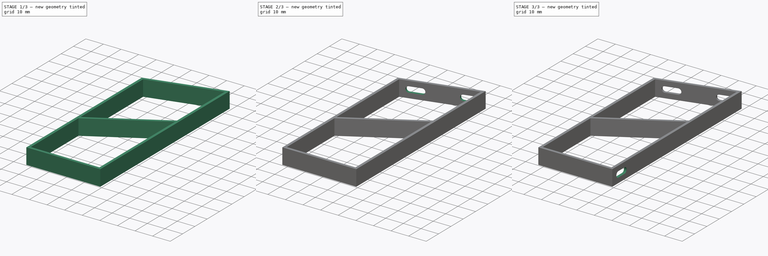
[diagram: build sequence overview — one tinted view per stage of 3, left to right]
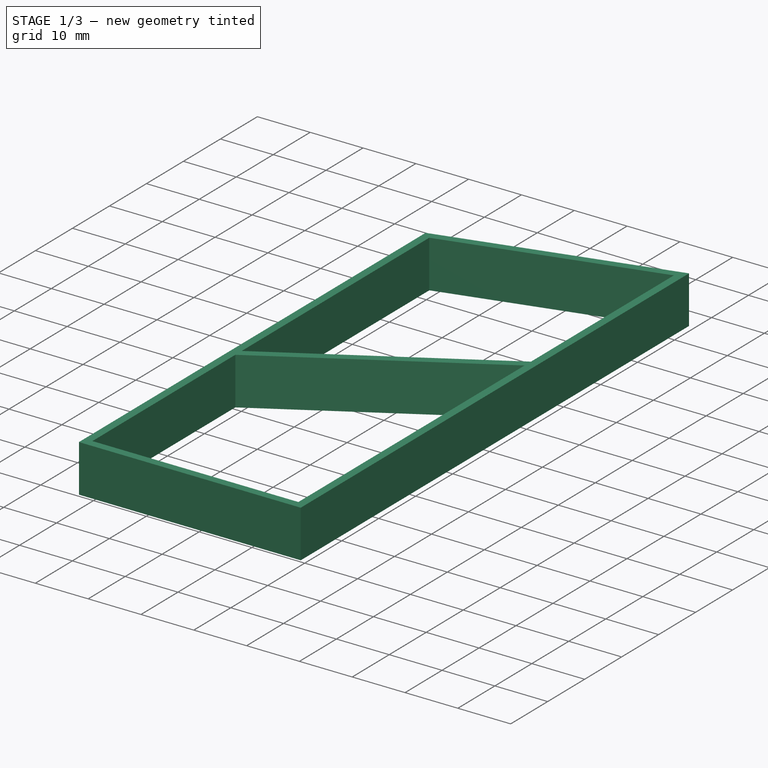
[diagram: stage 1 of 3 — iso view after this stage's code; geometry added in this stage tinted green]
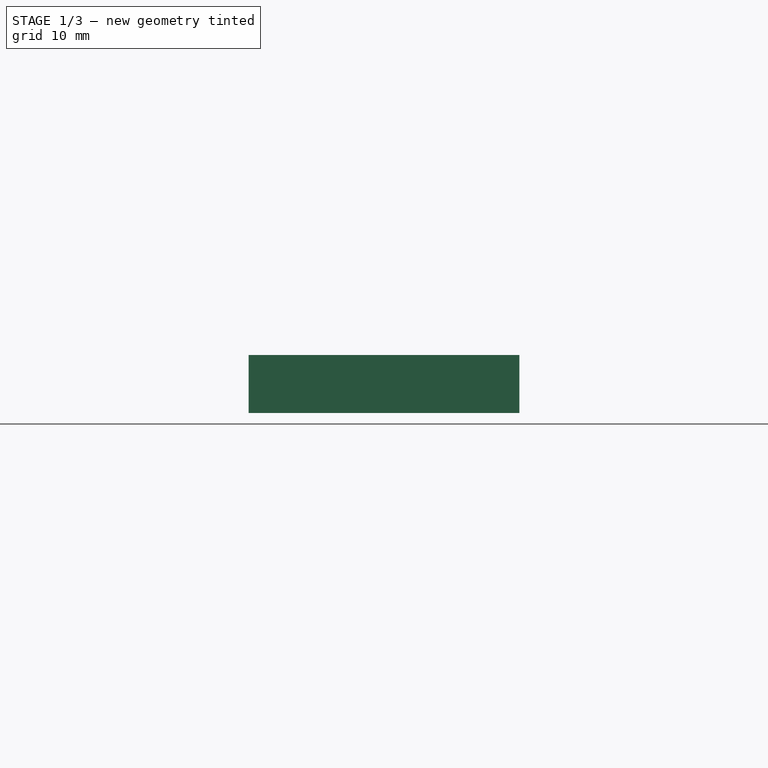
[diagram: stage 1 of 3 — front view after this stage's code; geometry added in this stage tinted green]
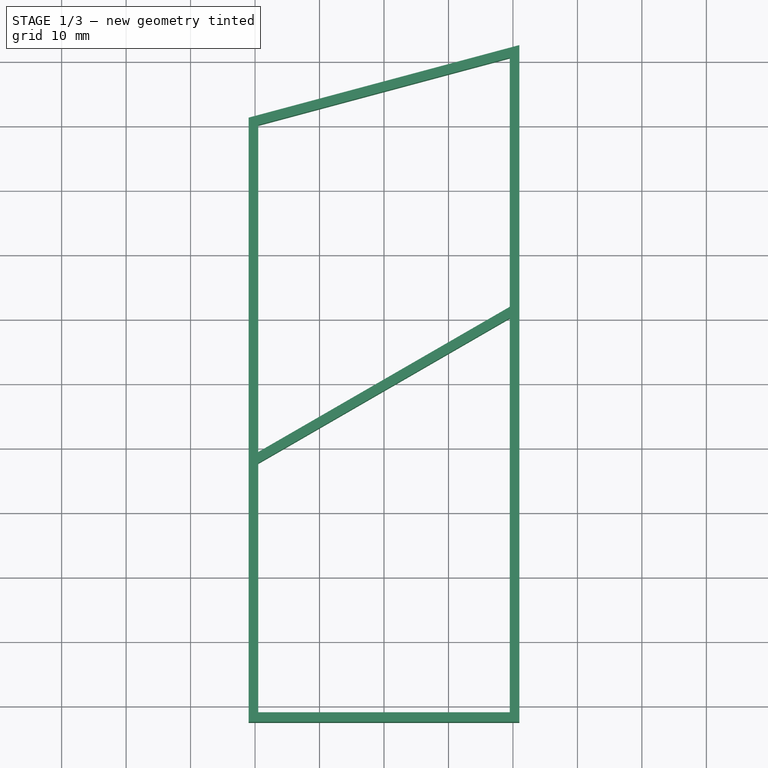
[diagram: stage 1 of 3 — top view after this stage's code; geometry added in this stage tinted green]
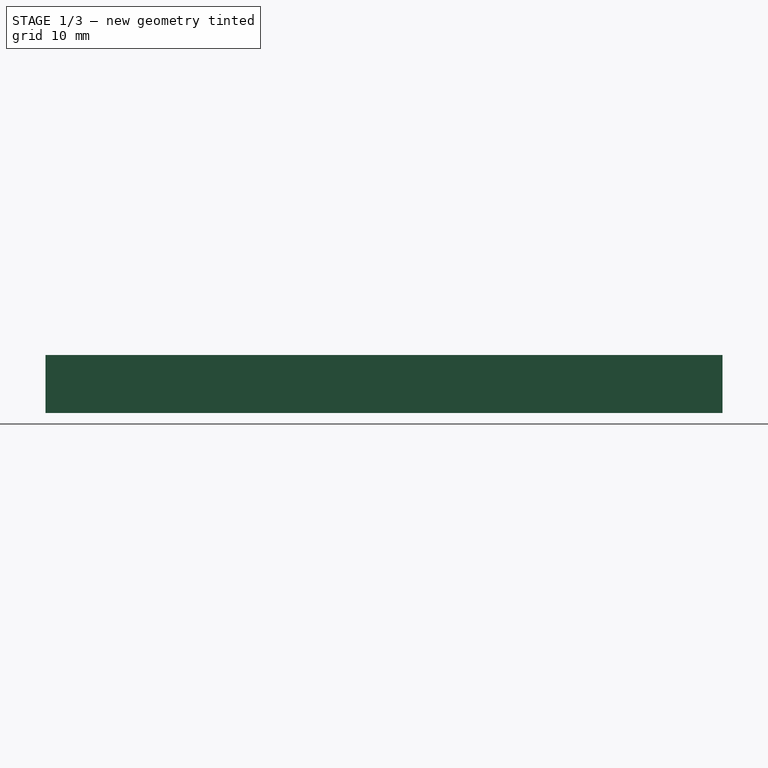
[diagram: stage 1 of 3 — right view after this stage's code; geometry added in this stage tinted green]
FCSTD DOCUMENT  (FreeCAD 0.16R5239 (Git))
Label: fanmount2
License: All rights reserved
LicenseURL: http://en.wikipedia.org/wiki/All_rights_reserved
objects: Sketcher::SketchObject×5, PartDesign::Pocket×4, PartDesign::Pad×1
note: 15 computed .brp shape members not serialized (recipe doc carries the construction recipe); baked Part::Feature solids carry a one-line shape summary decoded from their .brp

FEATURE [Sketcher::SketchObject] Sketch
  sketch-geometry (4):
    g0: LineSegment StartX=-21 StartY=41.2461 StartZ=0 EndX=21 EndY=52.5 EndZ=0
    g1: LineSegment StartX=21 StartY=52.5 StartZ=0 EndX=21 EndY=-52.5 EndZ=0
    g2: LineSegment StartX=21 StartY=-52.5 StartZ=0 EndX=-21 EndY=-52.5 EndZ=0
    g3: LineSegment StartX=-21 StartY=-52.5 StartZ=0 EndX=-21 EndY=41.2461 EndZ=0
  constraints (12):
    c: Coincident(g0,g1)
    c: Coincident(g1,g2)
    c: Coincident(g2,g3)
    c: Coincident(g3,g0)
    c: Horizontal(g2)
    c: Vertical(g1)
    c: Vertical(g3)
    c: DistanceX(g0) = 42
    c: DistanceY(g1) = -105
    c: Angle(g0,g1) = 1.309
    c: Symmetric(g2,g1,g-2)
    c: Symmetric(g0,g1,g-1)
FEATURE [PartDesign::Pad] Pad
  Length = 9
  Length2 = 100
  Sketch = -> Sketch
  Type = 0
FEATURE [Sketcher::SketchObject] Sketch001
  ExternalGeometry = -> [Pad]
  Placement = pos=(0,0,9) rot=(0,0,1;0rad)
  Support = -> Pad [Face6]
  sketch-geometry (11):
    g0: LineSegment StartX=-19.5 StartY=40.0951 StartZ=0 EndX=-19.5 EndY=-10.6197 EndZ=0
    g1: LineSegment StartX=-19.5 StartY=-10.6197 StartZ=0 EndX=19.5 EndY=11.8969 EndZ=0
    g2: LineSegment StartX=19.5 StartY=11.8969 StartZ=0 EndX=19.5 EndY=50.5452 EndZ=0
    g3: LineSegment StartX=19.5 StartY=50.5452 StartZ=0 EndX=-19.5 EndY=40.0951 EndZ=0
    g4: LineSegment StartX=-19.5 StartY=-12.3518 StartZ=0 EndX=-19.5 EndY=-51 EndZ=0
    g5: LineSegment StartX=-19.5 StartY=-51 StartZ=0 EndX=19.5 EndY=-51 EndZ=0
    g6: LineSegment StartX=19.5 StartY=-51 StartZ=0 EndX=19.5 EndY=10.1649 EndZ=0
    g7: LineSegment StartX=19.5 StartY=10.1649 StartZ=0 EndX=-19.5 EndY=-12.3518 EndZ=0
    g8: GeomPoint [constr] X=0.388229 Y=45.4242 Z=0
    g9: LineSegment [constr] StartX=0 StartY=46.8731 StartZ=0 EndX=0.388229 EndY=45.4242 EndZ=0
    g10: LineSegment [constr] StartX=-19.5 StartY=-10.6197 StartZ=0 EndX=-18.75 EndY=-11.9188 EndZ=0
  constraints (32):
    c: Vertical(g0)
    c: Coincident(g0,g1)
    c: Coincident(g1,g2)
    c: Vertical(g2)
    c: Coincident(g2,g3)
    c: Coincident(g3,g0)
    c: Vertical(g4)
    c: Coincident(g4,g5)
    c: Horizontal(g5)
    c: Coincident(g5,g6)
    c: Vertical(g6)
    c: Coincident(g6,g7)
    c: Coincident(g7,g4)
    c: PointOnObject(g4,g0)
    c: PointOnObject(g6,g2)
    c: DistanceX(g0,g-3) = -1.5
    c: DistanceX(g2,g-4) = 1.5
    c: PointOnObject(g8,g3)
    c: PointOnObject(g9,g-2)
    c: Coincident(g9,g8)
    c: Perpendicular(g9,g3)
    c: PointOnObject(g9,g-5)
    c: Distance(g9) = 1.5
    c: Parallel(g3,g-5)
    c: Angle(g-1,g1) = 0.523599
    c: Parallel(g1,g7)
    c: PointOnObject(g10,g7)
    c: Perpendicular(g10,g7)
    c: Distance(g10) = 1.5
    c: DistanceY(g5,g-4) = -1.5
    c: Equal(g4,g2)
    c: Coincident(g10,g0)
FEATURE [PartDesign::Pocket] Pocket
  Length = 10
  Sketch = -> Sketch001
  Type = 0
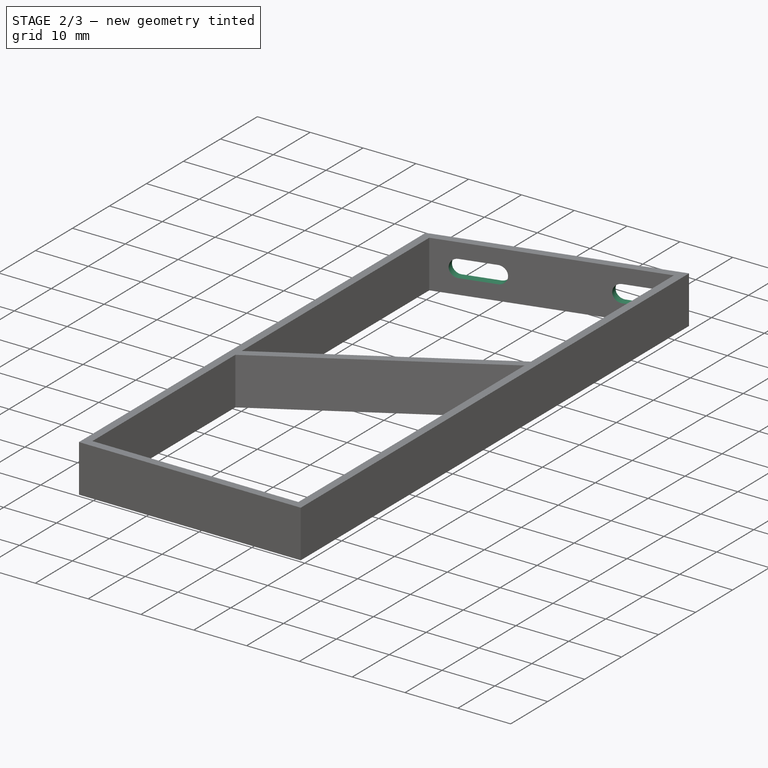
[diagram: stage 2 of 3 — iso view after this stage's code; geometry added in this stage tinted green]
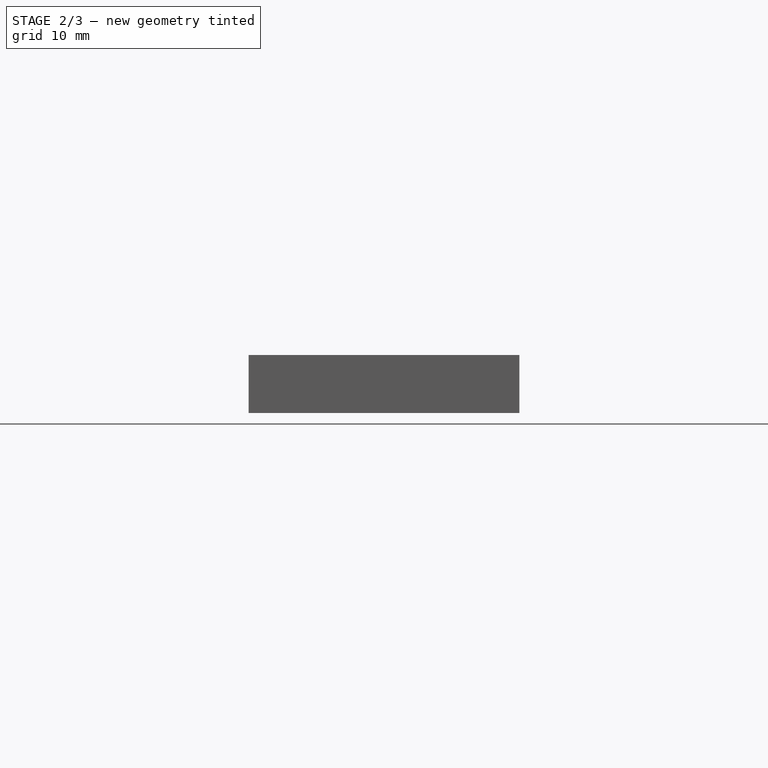
[diagram: stage 2 of 3 — front view after this stage's code; geometry added in this stage tinted green]
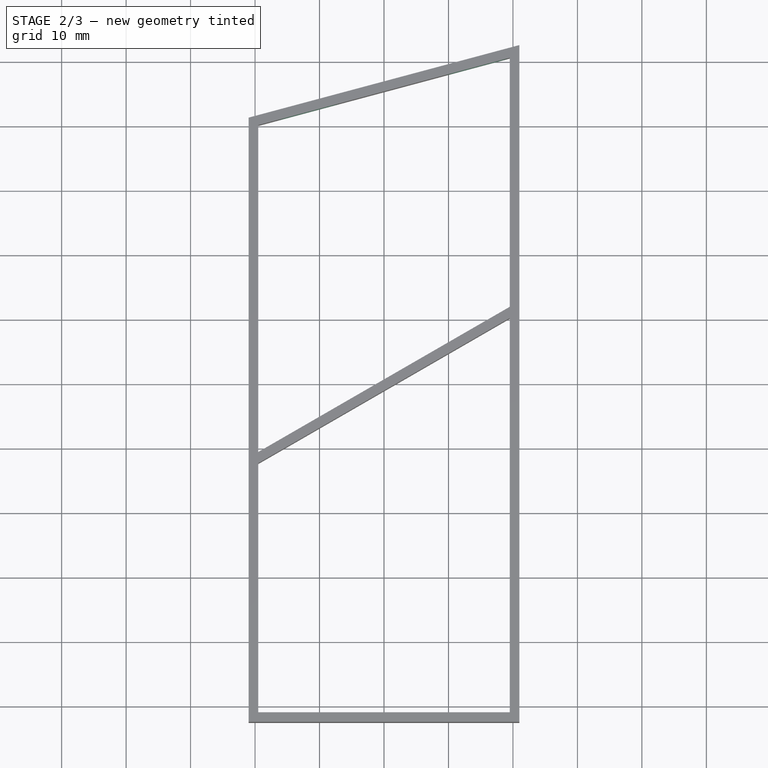
[diagram: stage 2 of 3 — top view after this stage's code; geometry added in this stage tinted green]
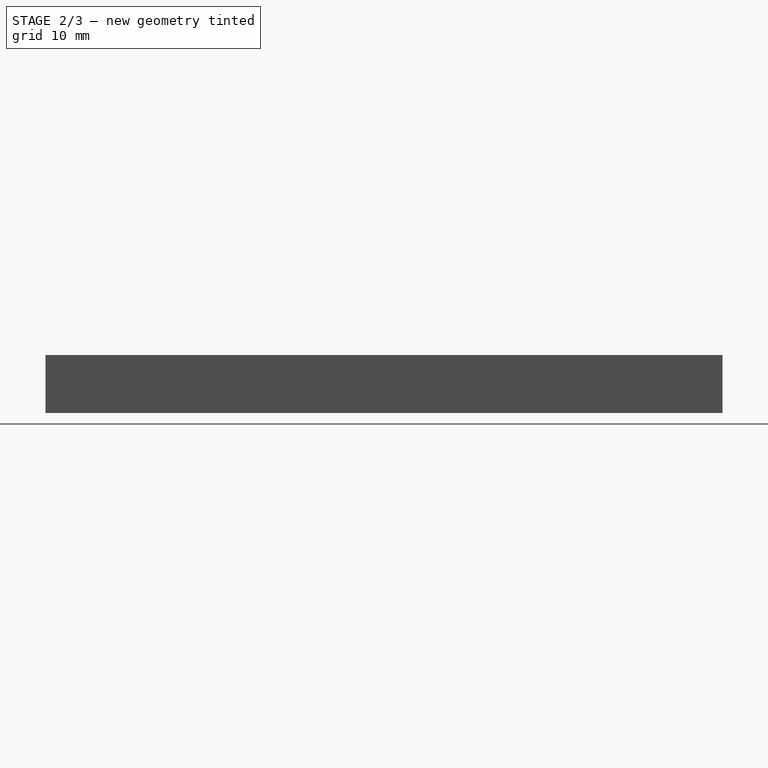
[diagram: stage 2 of 3 — right view after this stage's code; geometry added in this stage tinted green]
FEATURE [Sketcher::SketchObject] Sketch002
  ExternalGeometry = -> [Pocket]
  Placement = pos=(-11.7183,43.7332,0) rot=(-0.092692,0.704063,0.704063;3.32645rad)
  Support = -> Pocket [Face1]
  sketch-geometry (11):
    g0: ArcOfCircle CenterX=-2.89084 CenterY=4.5 CenterZ=0 NormalX=0 NormalY=0 NormalZ=1 Radius=1.65 StartAngle=1.5708 EndAngle=4.71239
    g1: ArcOfCircle CenterX=3.60916 CenterY=4.5 CenterZ=0 NormalX=0 NormalY=0 NormalZ=1 Radius=1.65 StartAngle=4.71239 EndAngle=7.85398
    g2: LineSegment StartX=-2.89084 StartY=2.85 StartZ=0 EndX=3.60916 EndY=2.85 EndZ=0
    g3: LineSegment StartX=-2.89084 StartY=6.15 StartZ=0 EndX=3.60916 EndY=6.15 EndZ=0
    g4: ArcOfCircle CenterX=-29.8908 CenterY=4.5 CenterZ=0 NormalX=0 NormalY=0 NormalZ=1 Radius=1.65 StartAngle=1.5708 EndAngle=4.71239
    g5: ArcOfCircle CenterX=-23.3908 CenterY=4.5 CenterZ=0 NormalX=0 NormalY=0 NormalZ=1 Radius=1.65 StartAngle=4.71239 EndAngle=7.85398
    g6: LineSegment StartX=-29.8908 StartY=2.85 StartZ=0 EndX=-23.3908 EndY=2.85 EndZ=0
    g7: LineSegment StartX=-29.8908 StartY=6.15 StartZ=0 EndX=-23.3908 EndY=6.15 EndZ=0
    g8: LineSegment [constr] StartX=-2.89084 StartY=0 StartZ=0 EndX=-2.89084 EndY=2.85 EndZ=0
    g9: LineSegment [constr] StartX=-2.89084 StartY=6.15 StartZ=0 EndX=-2.89084 EndY=9 EndZ=0
    g10: LineSegment [constr] StartX=-23.3908 StartY=2.85 StartZ=0 EndX=-23.3908 EndY=0 EndZ=0
  constraints (29):
    c: Tangent(g0,g3) = 1.5708
    c: Tangent(g0,g2) = -1.5708
    c: Tangent(g2,g1) = -1.5708
    c: Tangent(g3,g1) = 1.5708
    c: Horizontal(g2)
    c: Equal(g0,g1)
    c: Tangent(g4,g7) = 1.5708
    c: Tangent(g4,g6) = -1.5708
    c: Tangent(g6,g5) = -1.5708
    c: Tangent(g7,g5) = 1.5708
    c: Horizontal(g6)
    c: Equal(g4,g5)
    c: DistanceX(g1,g-3) = 6
    c: DistanceX(g3) = 6.5
    c: DistanceY(g1,g1) = -3.3
    c: DistanceX(g5,g1) = 27
    c: Equal(g3,g7)
    c: DistanceY(g4,g4) = -3.3
    c: PointOnObject(g8,g-1)
    c: Vertical(g8)
    c: Coincident(g8,g0)
    c: Coincident(g9,g0)
    c: PointOnObject(g9,g-3)
    c: Vertical(g9)
    c: Coincident(g10,g5)
    c: PointOnObject(g10,g-1)
    c: Vertical(g10)
    c: Equal(g10,g8)
    c: Equal(g8,g9)
FEATURE [PartDesign::Pocket] Pocket001
  Length = 5
  Sketch = -> Sketch002
  Type = 0
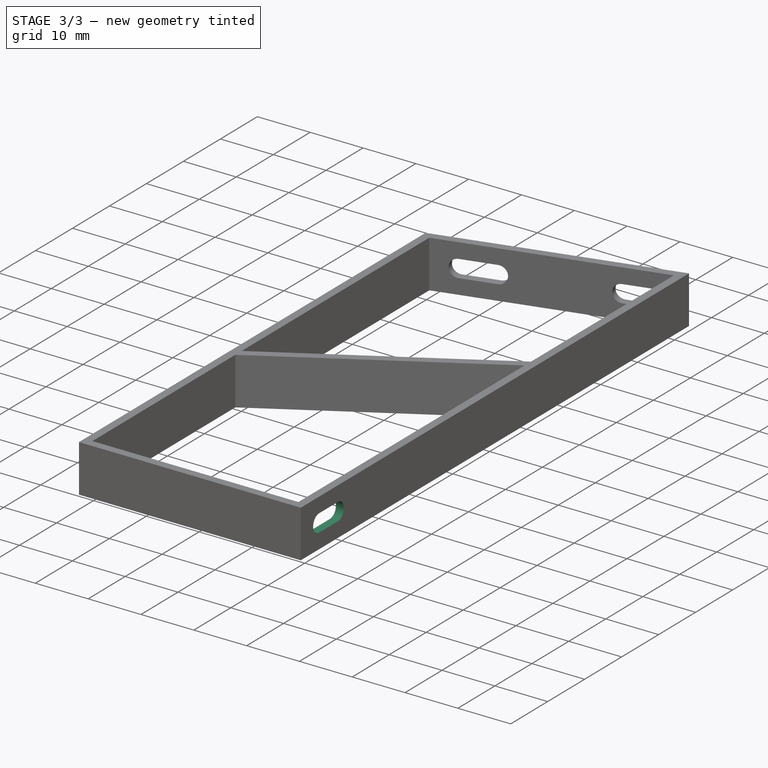
[diagram: stage 3 of 3 — iso view after this stage's code; geometry added in this stage tinted green]
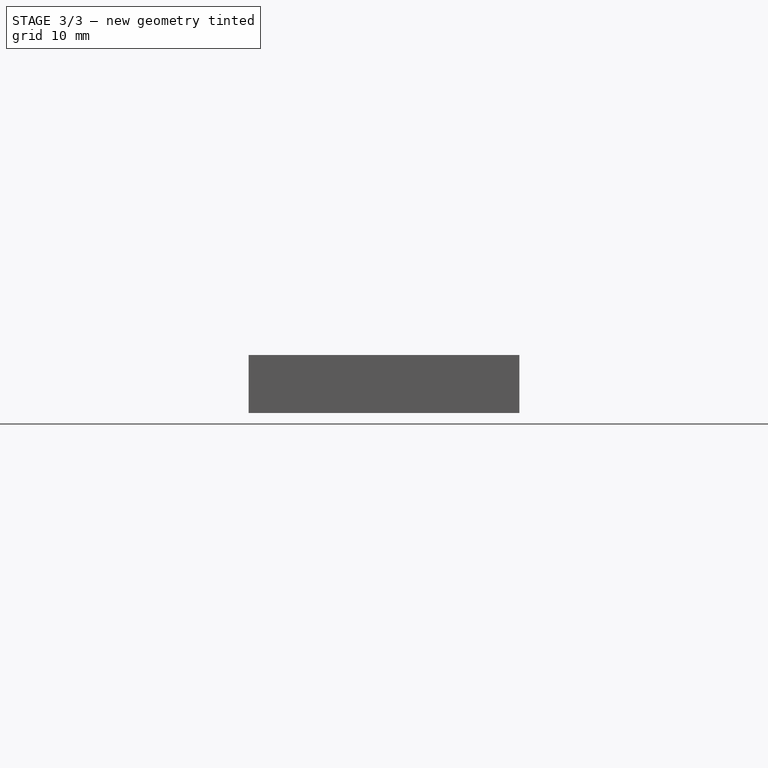
[diagram: stage 3 of 3 — front view after this stage's code; geometry added in this stage tinted green]
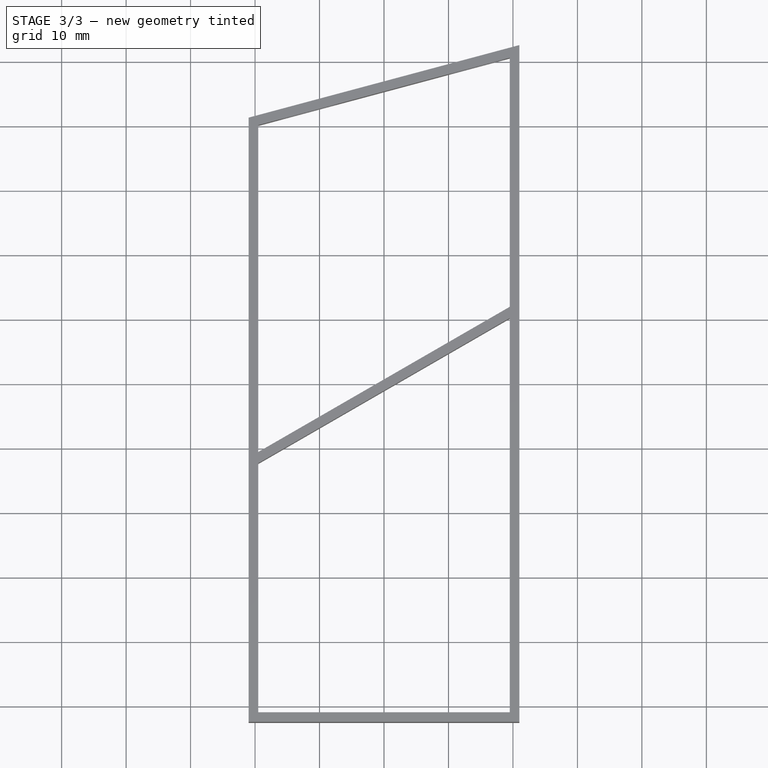
[diagram: stage 3 of 3 — top view after this stage's code; geometry added in this stage tinted green]
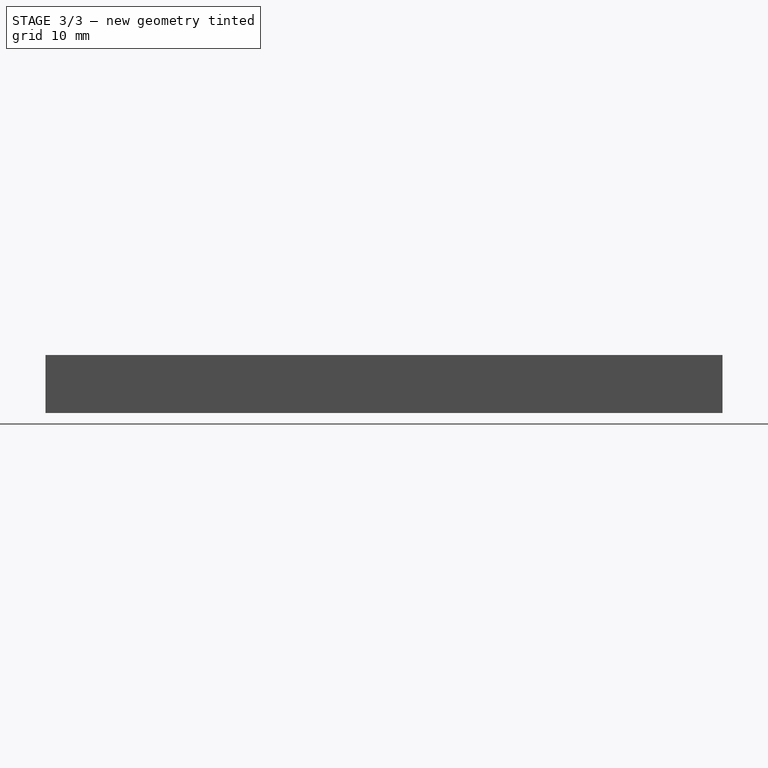
[diagram: stage 3 of 3 — right view after this stage's code; geometry added in this stage tinted green]
FEATURE [Sketcher::SketchObject] Sketch003
  ExternalGeometry = -> [Pocket001]
  Placement = pos=(0,0,9) rot=(0,0,1;0rad)
  Support = -> Pocket001 [Face4]
  sketch-geometry (3):
    g0: Circle CenterX=37 CenterY=-21.774 CenterZ=0 NormalX=0 NormalY=0 NormalZ=1 Radius=1.6
    g1: LineSegment [constr] StartX=21 StartY=-52.5 StartZ=0 EndX=37 EndY=-21.774 EndZ=0
    g2: LineSegment [constr] StartX=37 StartY=-21.774 StartZ=0 EndX=21 EndY=-52.5 EndZ=0
  constraints (7):
    c: Radius(g0) = 1.6
    c: DistanceX(g0,g-3) = -16
    c: Coincident(g1,g-3)
    c: Coincident(g1,g0)
    c: Coincident(g2,g0)
    c: Coincident(g2,g-3)
    c: Equal(g1,g2)
FEATURE [PartDesign::Pocket] Pocket002
  Length = 5
  Sketch = -> Sketch003
  Type = 0
FEATURE [Sketcher::SketchObject] Sketch004
  ExternalGeometry = -> [Pocket002]
  Placement = pos=(21,0,0) rot=(0.57735,0.57735,0.57735;2.0944rad)
  Support = -> Pocket002 [Face5]
  sketch-geometry (6):
    g0: ArcOfCircle CenterX=-47.5 CenterY=4.5 CenterZ=0 NormalX=0 NormalY=0 NormalZ=1 Radius=1.65 StartAngle=1.5708 EndAngle=4.71239
    g1: ArcOfCircle CenterX=-42.5 CenterY=4.5 CenterZ=0 NormalX=0 NormalY=0 NormalZ=1 Radius=1.65 StartAngle=4.71239 EndAngle=7.85398
    g2: LineSegment StartX=-47.5 StartY=2.85 StartZ=0 EndX=-42.5 EndY=2.85 EndZ=0
    g3: LineSegment StartX=-47.5 StartY=6.15 StartZ=0 EndX=-42.5 EndY=6.15 EndZ=0
    g4: LineSegment [constr] StartX=-42.5 StartY=6.15 StartZ=0 EndX=-42.5 EndY=9 EndZ=0
    g5: LineSegment [constr] StartX=-42.5 StartY=2.85 StartZ=0 EndX=-42.5 EndY=0 EndZ=0
  constraints (16):
    c: Tangent(g0,g3) = 1.5708
    c: Tangent(g0,g2) = -1.5708
    c: Tangent(g2,g1) = -1.5708
    c: Tangent(g3,g1) = 1.5708
    c: Horizontal(g2)
    c: Equal(g0,g1)
    c: DistanceY(g1,g1) = -3.3
    c: Coincident(g4,g1)
    c: PointOnObject(g4,g-3)
    c: Vertical(g4)
    c: Coincident(g5,g1)
    c: PointOnObject(g5,g-1)
    c: Vertical(g5)
    c: Equal(g4,g5)
    c: DistanceX(g-3,g0) = 5
    c: DistanceX(g1,g-3) = -10
FEATURE [PartDesign::Pocket] Pocket003
  Length = 2
  Sketch = -> Sketch004
  Type = 0
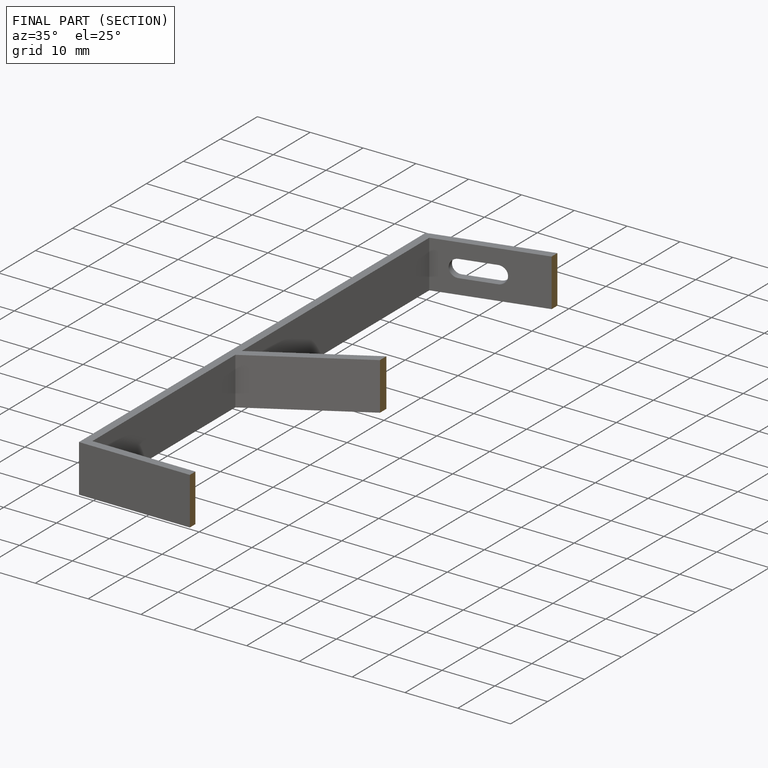
[diagram: finished part — half-section view (interior)]
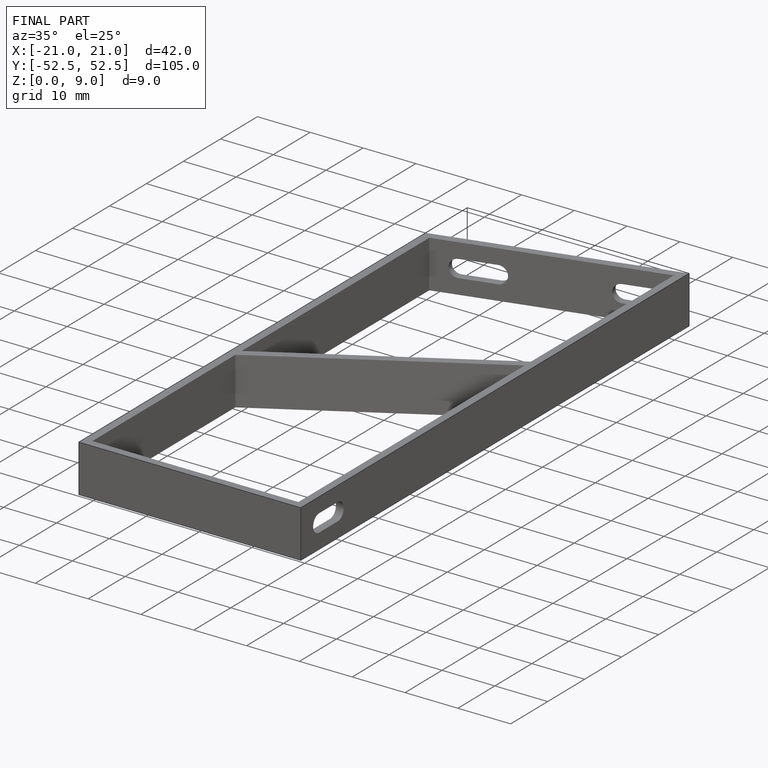
[diagram: finished part — iso view with bounding-box wireframe]
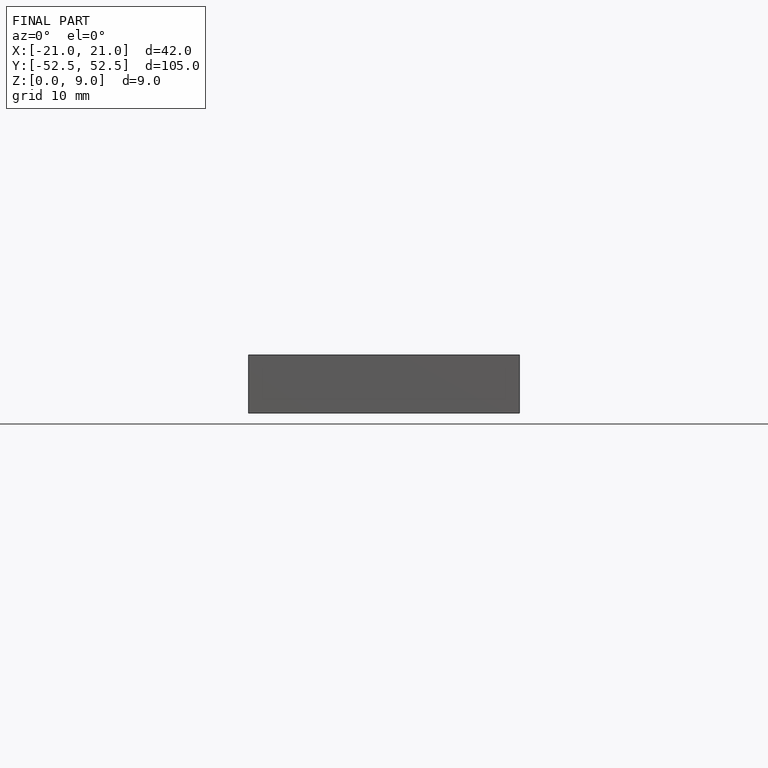
[diagram: finished part — front view with bounding-box wireframe]
